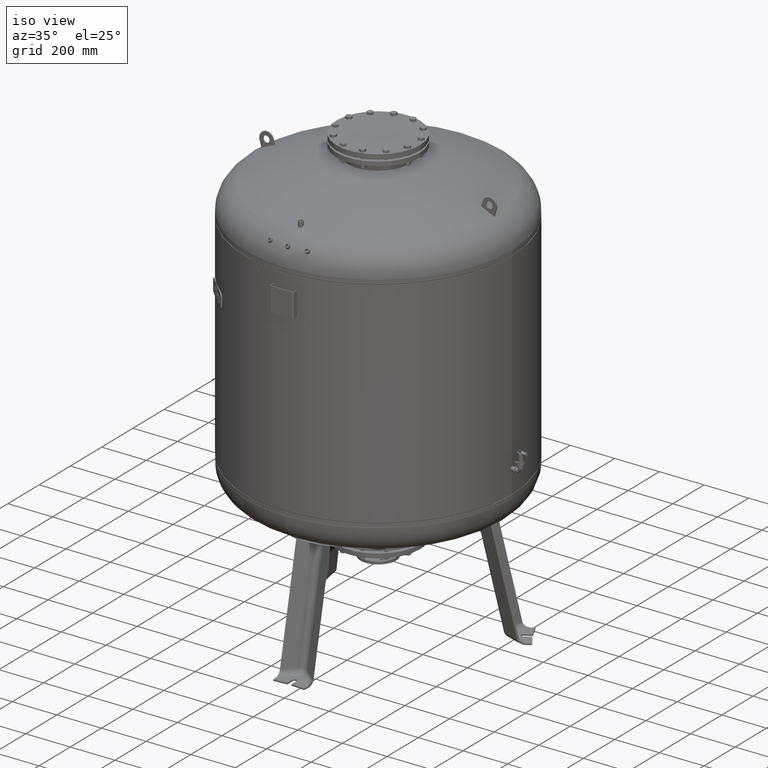
[diagram: clean part render]
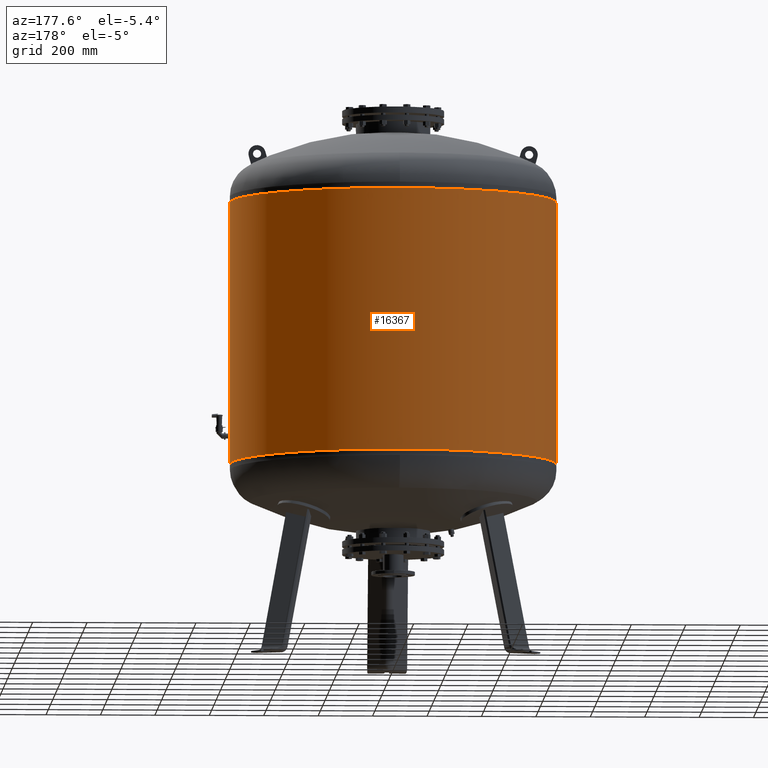
[diagram: tour spotlight — one face highlighted and labeled with its STEP entity id]
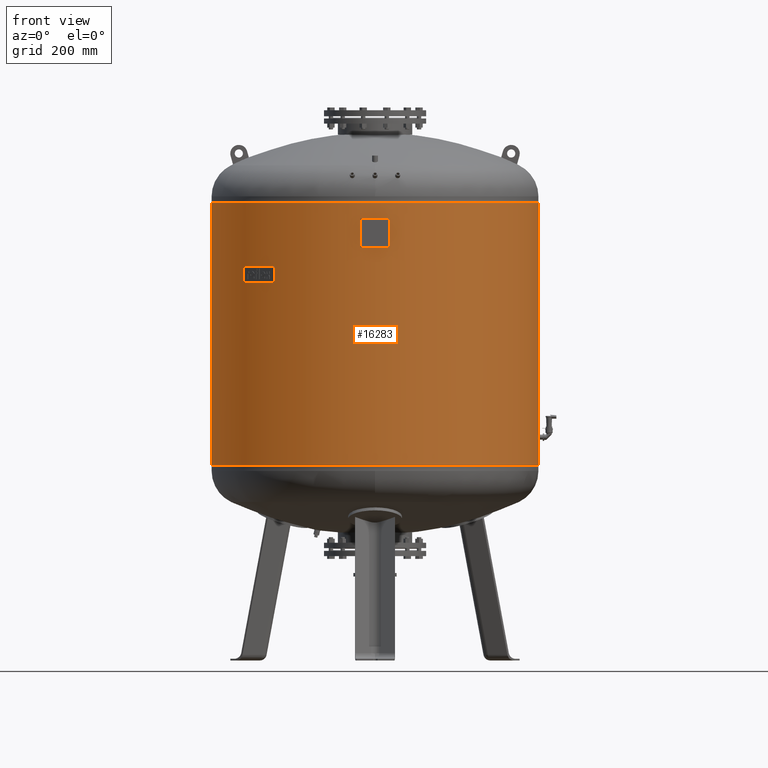
[diagram: tour spotlight — one face highlighted and labeled with its STEP entity id]
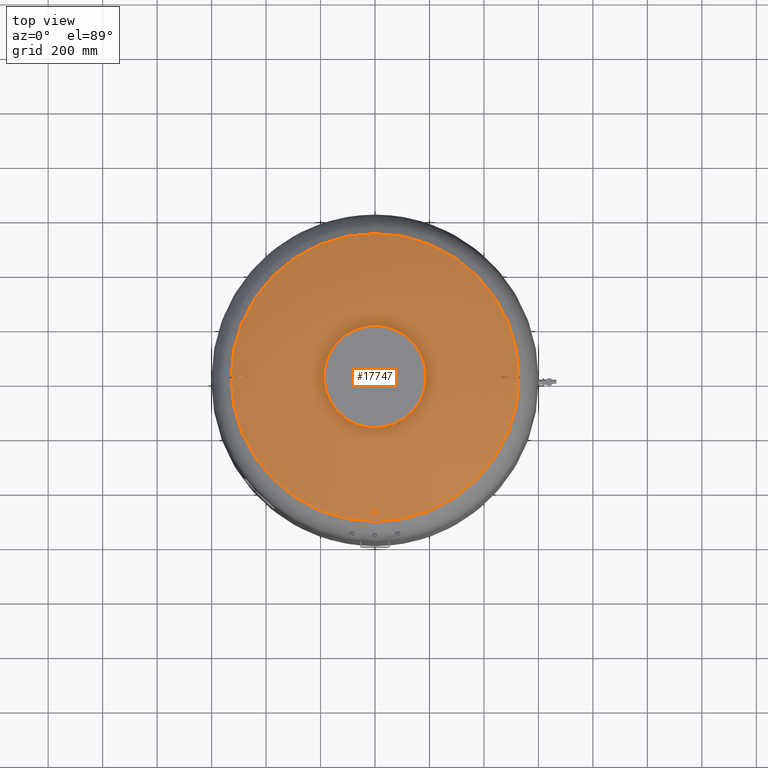
[diagram: tour spotlight — one face highlighted and labeled with its STEP entity id]
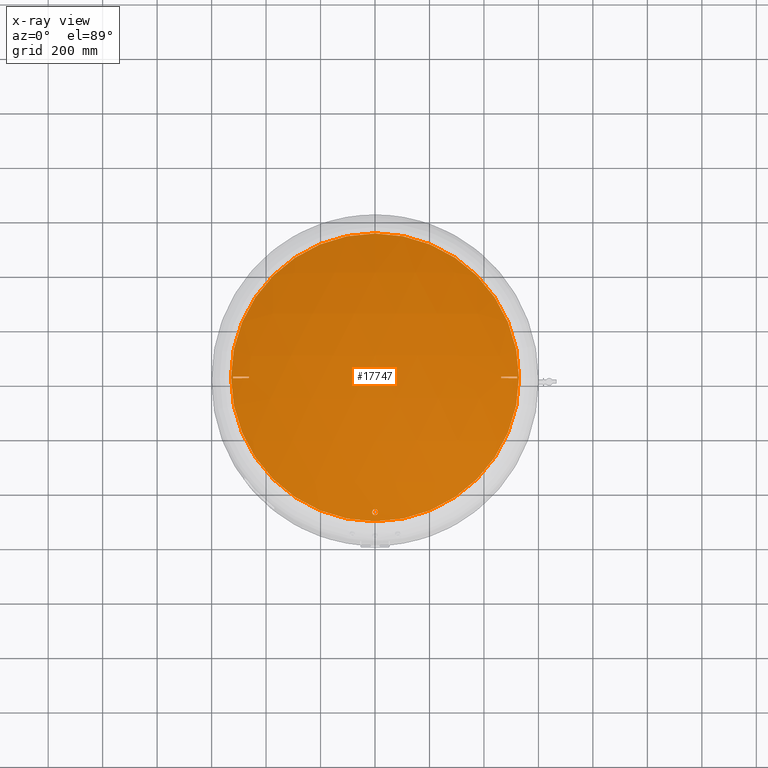
[diagram: x-ray of the same camera — body ghosted, this tour face saturated]
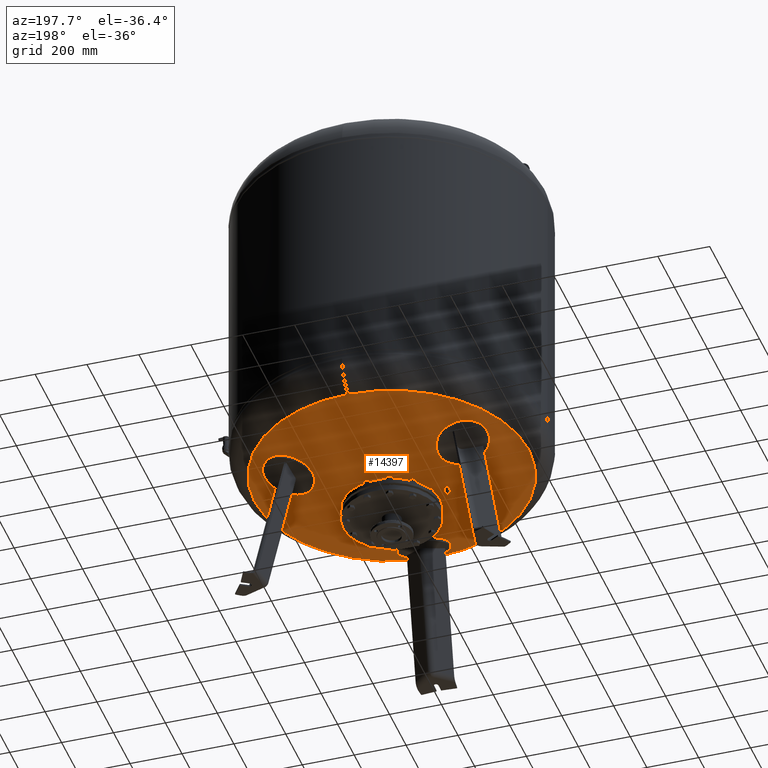
[diagram: tour spotlight — one face highlighted and labeled with its STEP entity id]
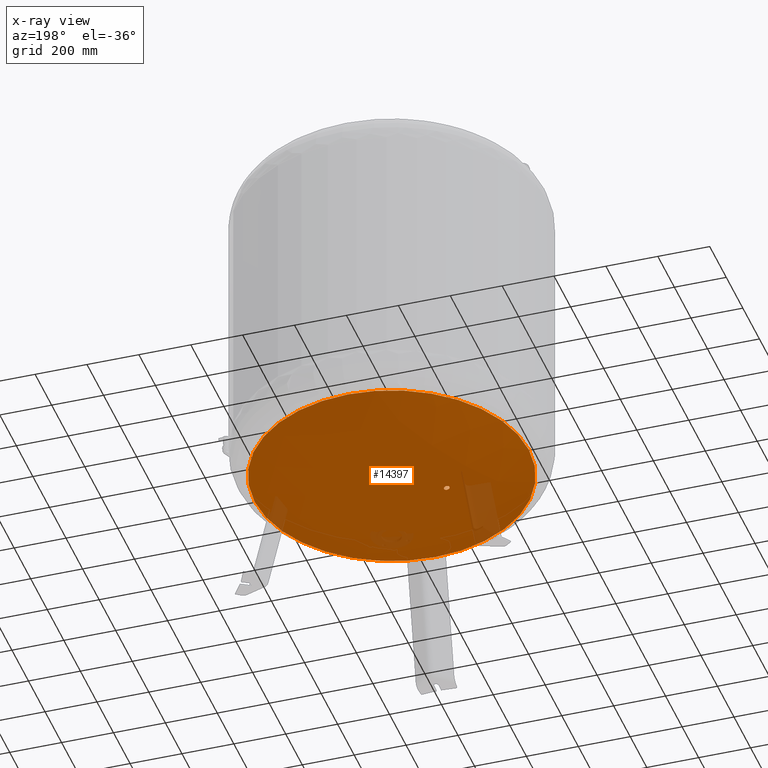
[diagram: x-ray of the same camera — body ghosted, this tour face saturated]
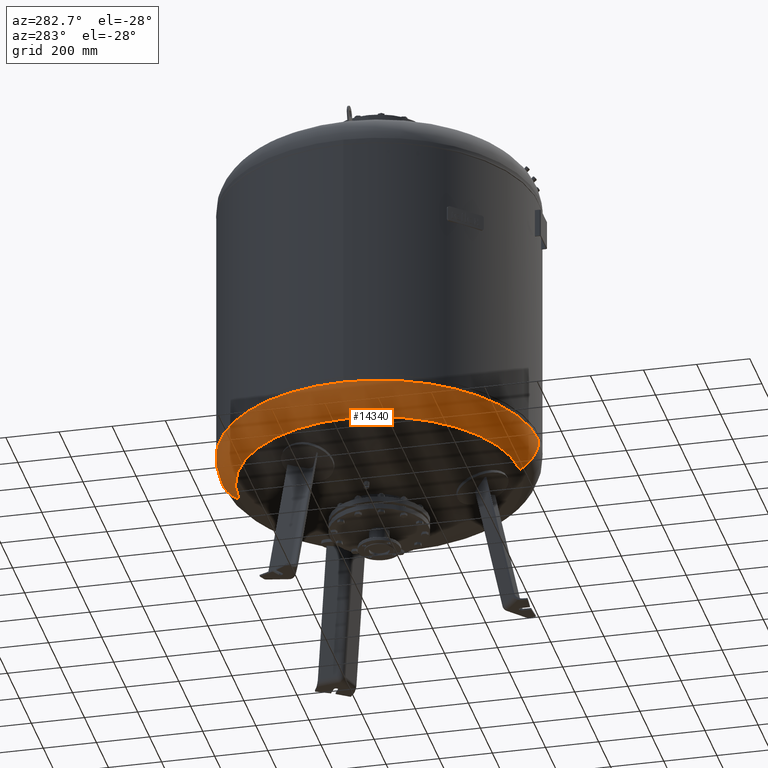
[diagram: tour spotlight — one face highlighted and labeled with its STEP entity id]
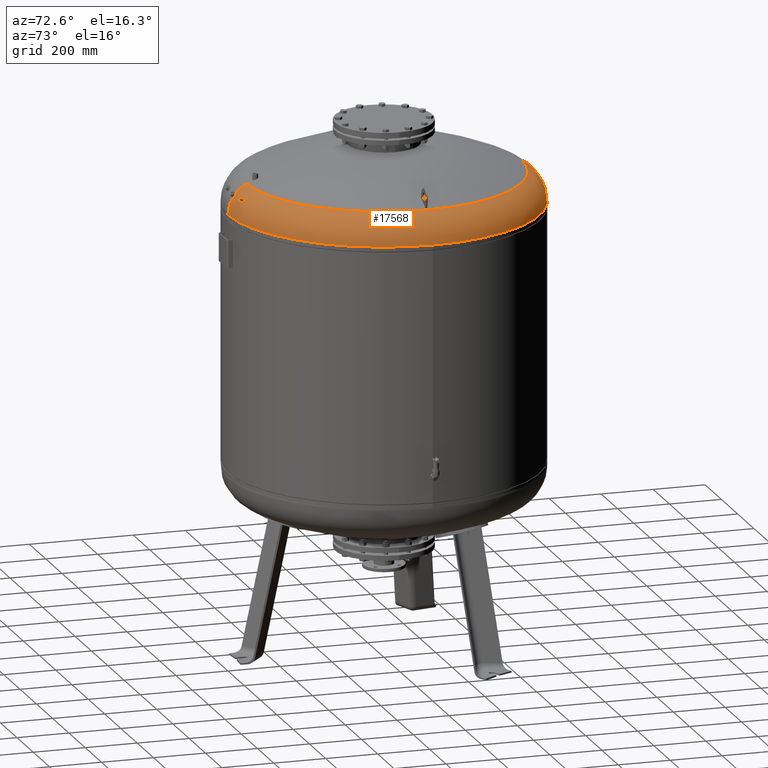
[diagram: tour spotlight — one face highlighted and labeled with its STEP entity id]
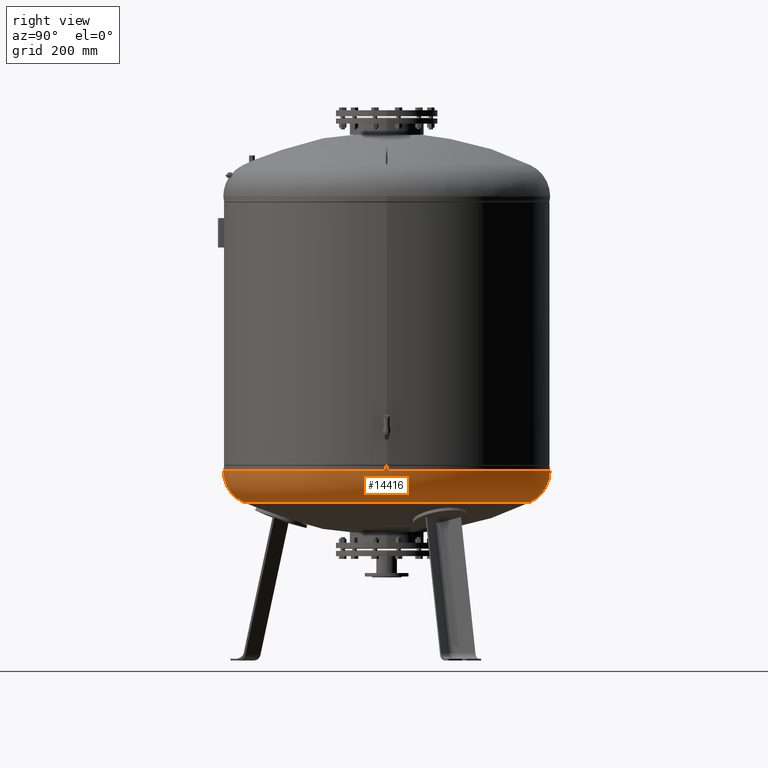
[diagram: tour spotlight — one face highlighted and labeled with its STEP entity id]
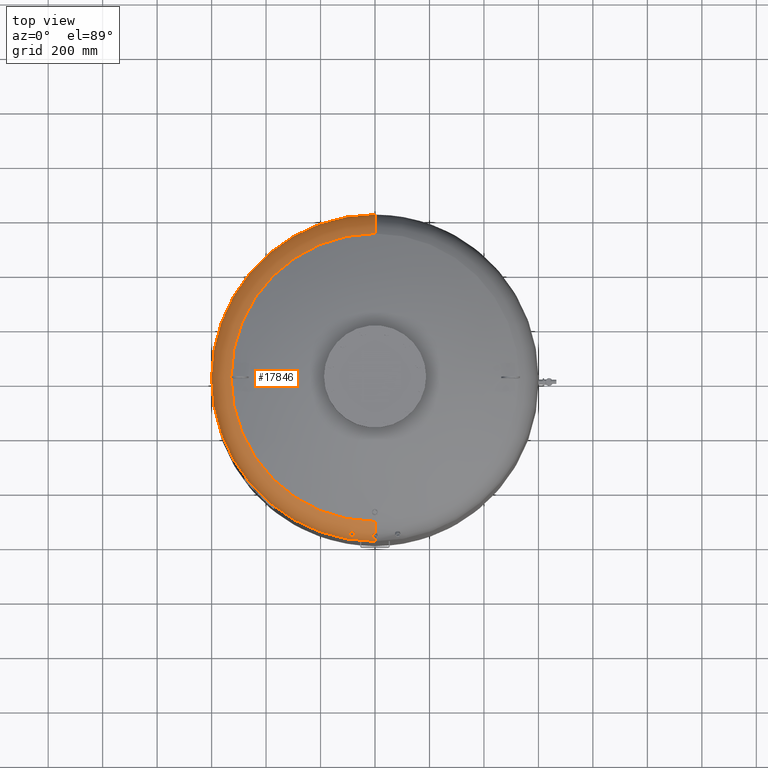
[diagram: tour spotlight — one face highlighted and labeled with its STEP entity id]
A machine part: a face-by-face anatomy tour. The part has 940 B-rep faces; the first image is the clean iso view, then the 8 largest visible faces are spotlighted one at a time (largest first), each with its STEP entity span.

Face 1 — auxiliary view, entity #16367. In plain terms, the highlighted cylindrical surface (partial cylindrical patch) has radius 600 mm, axis along (0, 0, 1).
Definition (entity closure, byte-faithful):
#16247=CARTESIAN_POINT('',(600.000000000000570,0.0,1681.999999999999800));
#16248=VERTEX_POINT('',#16247);
#16249=CARTESIAN_POINT('',(600.000000000000110,0.0,717.999999999999770));
#16250=VERTEX_POINT('',#16249);
#16251=CARTESIAN_POINT('',(600.000000000000570,0.0,1681.999999999999800));
#16252=DIRECTION('',(0.0,0.0,-1.0));
#16253=VECTOR('',#16252,964.0);
#16254=LINE('',#16251,#16253);
#16255=EDGE_CURVE('',#16248,#16250,#16254,.T.);
#16257=CARTESIAN_POINT('',(-600.000000000000450,-7.347638E-014,1681.999999999999800));
#16258=VERTEX_POINT('',#16257);
#16266=CARTESIAN_POINT('',(-600.000000000000110,-7.347638E-014,717.999999999999770));
#16267=VERTEX_POINT('',#16266);
#16268=CARTESIAN_POINT('',(-600.000000000000450,-7.347638E-014,1681.999999999999800));
#16269=DIRECTION('',(0.0,0.0,-1.0));
#16270=VECTOR('',#16269,964.0);
#16271=LINE('',#16268,#16270);
#16272=EDGE_CURVE('',#16258,#16267,#16271,.T.);
#16340=CARTESIAN_POINT('',(-1.658784E-014,0.0,717.999999999999770));
#16341=DIRECTION('',(0.0,0.0,1.0));
#16342=DIRECTION('',(1.0,0.0,0.0));
#16343=AXIS2_PLACEMENT_3D('',#16340,#16341,#16342);
#16344=CIRCLE('',#16343,600.000000000000110);
#16345=EDGE_CURVE('',#16250,#16267,#16344,.T.);
#16350=CARTESIAN_POINT('',(8.293918E-015,0.0,1433.500000000000000));
#16351=DIRECTION('',(3.337593E-017,0.0,1.0));
#16352=DIRECTION('',(1.0,0.0,0.0));
#16353=AXIS2_PLACEMENT_3D('',#16350,#16351,#16352);
#16354=CYLINDRICAL_SURFACE('',#16353,600.000000000000450);
#16355=ORIENTED_EDGE('',*,*,#16255,.T.);
#16356=ORIENTED_EDGE('',*,*,#16345,.T.);
#16357=ORIENTED_EDGE('',*,*,#16272,.F.);
#16358=CARTESIAN_POINT('',(1.658784E-014,0.0,1681.999999999999800));
#16359=DIRECTION('',(0.0,0.0,1.0));
#16360=DIRECTION('',(1.0,0.0,0.0));
#16361=AXIS2_PLACEMENT_3D('',#16358,#16359,#16360);
#16362=CIRCLE('',#16361,600.000000000000570);
#16363=EDGE_CURVE('',#16248,#16258,#16362,.T.);
#16364=ORIENTED_EDGE('',*,*,#16363,.F.);
#16365=EDGE_LOOP('',(#16355,#16356,#16357,#16364));
#16366=FACE_OUTER_BOUND('',#16365,.T.);
#16367=ADVANCED_FACE('',(#16366),#16354,.T.);

Face 2 — front view, entity #16283. In plain terms, the highlighted cylindrical surface (partial cylindrical patch) has radius 600 mm, axis along (0, 0, 1).
Definition (entity closure, byte-faithful):
#16242=CARTESIAN_POINT('',(8.293918E-015,0.0,1433.500000000000000));
#16243=DIRECTION('',(3.337593E-017,0.0,1.0));
#16244=DIRECTION('',(1.0,0.0,0.0));
#16245=AXIS2_PLACEMENT_3D('',#16242,#16243,#16244);
#16246=CYLINDRICAL_SURFACE('',#16245,600.000000000000450);
#16247=CARTESIAN_POINT('',(600.000000000000570,0.0,1681.999999999999800));
#16248=VERTEX_POINT('',#16247);
#16249=CARTESIAN_POINT('',(600.000000000000110,0.0,717.999999999999770));
#16250=VERTEX_POINT('',#16249);
#16251=CARTESIAN_POINT('',(600.000000000000570,0.0,1681.999999999999800));
#16252=DIRECTION('',(0.0,0.0,-1.0));
#16253=VECTOR('',#16252,964.0);
#16254=LINE('',#16251,#16253);
#16255=EDGE_CURVE('',#16248,#16250,#16254,.T.);
#16256=ORIENTED_EDGE('',*,*,#16255,.F.);
#16257=CARTESIAN_POINT('',(-600.000000000000450,-7.347638E-014,1681.999999999999800));
#16258=VERTEX_POINT('',#16257);
#16259=CARTESIAN_POINT('',(1.658784E-014,0.0,1681.999999999999800));
#16260=DIRECTION('',(0.0,0.0,1.0));
#16261=DIRECTION('',(1.0,0.0,0.0));
#16262=AXIS2_PLACEMENT_3D('',#16259,#16260,#16261);
#16263=CIRCLE('',#16262,600.000000000000570);
#16264=EDGE_CURVE('',#16258,#16248,#16263,.T.);
#16265=ORIENTED_EDGE('',*,*,#16264,.F.);
#16266=CARTESIAN_POINT('',(-600.000000000000110,-7.347638E-014,717.999999999999770));
#16267=VERTEX_POINT('',#16266);
#16268=CARTESIAN_POINT('',(-600.000000000000450,-7.347638E-014,1681.999999999999800));
#16269=DIRECTION('',(0.0,0.0,-1.0));
#16270=VECTOR('',#16269,964.0);
#16271=LINE('',#16268,#16270);
#16272=EDGE_CURVE('',#16258,#16267,#16271,.T.);
#16273=ORIENTED_EDGE('',*,*,#16272,.T.);
#16274=CARTESIAN_POINT('',(-1.658784E-014,0.0,717.999999999999770));
#16275=DIRECTION('',(0.0,0.0,1.0));
#16276=DIRECTION('',(1.0,0.0,0.0));
#16277=AXIS2_PLACEMENT_3D('',#16274,#16275,#16276);
#16278=CIRCLE('',#16277,600.000000000000110);
#16279=EDGE_CURVE('',#16267,#16250,#16278,.T.);
#16280=ORIENTED_EDGE('',*,*,#16279,.T.);
#16281=EDGE_LOOP('',(#16256,#16265,#16273,#16280));
#16282=FACE_OUTER_BOUND('',#16281,.T.);
#16283=ADVANCED_FACE('',(#16282),#16246,.T.);

Face 3 — top view, entity #17747. An x-ray twin of the same camera follows (body ghosted, this face saturated) — the face is partly hidden behind the body. In plain terms, the highlighted spherical surface has radius 1207 mm.
Definition (entity closure, byte-faithful):
#16529=CARTESIAN_POINT('',(-3.908790E-014,-505.650000000000260,1828.977681113990700));
#16530=VERTEX_POINT('',#16529);
#16546=CARTESIAN_POINT('',(-3.643333E-014,-484.350000000000310,1838.556003782712200));
#16547=VERTEX_POINT('',#16546);
#16554=CARTESIAN_POINT('',(-3.643333E-014,-484.350000000000310,1838.556003782712200));
#16555=CARTESIAN_POINT('',(-0.665611636080587,-484.350000000000310,1838.556003782712200));
#16556=CARTESIAN_POINT('',(-1.351712007087174,-484.413449330400450,1838.527596291778100));
#16557=CARTESIAN_POINT('',(-2.711455124781883,-484.677684778344770,1838.409278534069900));
#16558=CARTESIAN_POINT('',(-3.385112822109979,-484.878406691486020,1838.319396709681300));
#16559=CARTESIAN_POINT('',(-4.671983453209512,-485.404260841615380,1838.083876063063600));
#16560=CARTESIAN_POINT('',(-5.286383442477947,-485.729841940405830,1837.938035283821800));
#16561=CARTESIAN_POINT('',(-6.418662963042159,-486.474599944024990,1837.604341560041300));
#16562=CARTESIAN_POINT('',(-6.936540506419686,-486.893778895747520,1837.416486438550200));
#16563=CARTESIAN_POINT('',(-7.900192687897327,-487.823356474835690,1836.999774688893900));
#16564=CARTESIAN_POINT('',(-8.369020497877676,-488.373824638455970,1836.752944631033400));
#16565=CARTESIAN_POINT('',(-9.188808647865463,-489.567459190703860,1836.217505560420200));
#16566=CARTESIAN_POINT('',(-9.539857037879660,-490.210574780593670,1835.928918118605900));
#16567=CARTESIAN_POINT('',(-10.100625147679995,-491.546764270494920,1835.329066489736500));
#16568=CARTESIAN_POINT('',(-10.310736765037014,-492.240729558734700,1835.017401333808500));
#16569=CARTESIAN_POINT('',(-10.585453694089770,-493.631410911690980,1834.392563213996500));
#16570=CARTESIAN_POINT('',(-10.650000000000041,-494.328136578031940,1834.079385679025300));
#16571=CARTESIAN_POINT('',(-10.650000000000041,-495.672249771666320,1833.474961828124200));
#16572=CARTESIAN_POINT('',(-10.585380396556669,-496.369268012084660,1833.161397323186300));
#16573=CARTESIAN_POINT('',(-10.310462392525936,-497.760351114899380,1832.535323620084000));
#16574=CARTESIAN_POINT('',(-10.100224561864295,-498.454426017125230,1832.222810133959700));
#16575=CARTESIAN_POINT('',(-9.539219073899464,-499.790709135052230,1831.620892770933300));
#16576=CARTESIAN_POINT('',(-9.188061671035115,-500.433806541516050,1831.331089151720100));
#16577=CARTESIAN_POINT('',(-8.368086172563105,-501.627357286810650,1830.793043409988500));
#16578=CARTESIAN_POINT('',(-7.899179737395413,-502.177760642695720,1830.544825043460200));
#16579=CARTESIAN_POINT('',(-6.935591451669570,-503.107009891746540,1830.125643340669500));
#16580=CARTESIAN_POINT('',(-6.417878505985910,-503.525973237725740,1829.936594437422400));
#16581=CARTESIAN_POINT('',(-5.285911664195274,-504.270411104392510,1829.600610399233600));
#16582=CARTESIAN_POINT('',(-4.671659030031402,-504.595887700676880,1829.453675611560100));
#16583=CARTESIAN_POINT('',(-3.385018268838375,-505.121615967432380,1829.216307020834600));
#16584=CARTESIAN_POINT('',(-2.711440963249321,-505.322316471515020,1829.125671514436800));
#16585=CARTESIAN_POINT('',(-1.351770687093105,-505.586540768529060,1829.006343822394000));
#16586=CARTESIAN_POINT('',(-0.665662584297589,-505.650000000000260,1828.977681113990700));
#16587=CARTESIAN_POINT('',(-3.908790E-014,-505.650000000000260,1828.977681113990700));
#16588=B_SPLINE_CURVE_WITH_KNOTS('',3,(#16554,#16555,#16556,#16557,#16558,#16559,#16560,#16561,#16562,#16563,#16564,#16565,#16566,#16567,#16568,#16569,#16570,#16571,#16572,#16573,#16574,#16575,#16576,#16577,#16578,#16579,#16580,#16581,#16582,#16583,#16584,#16585,#16586,#16587),.UNSPECIFIED.,.F.,.U.,(4,2,2,2,2,2,2,2,2,2,2,2,2,2,2,2,4),(33.660410364601788,35.657245272843440,37.654080181085092,39.650915089326745,41.647749997568390,43.857754539841181,46.067759082113966,48.277763624386751,50.487768166659535,52.699043554402891,54.910318942146247,57.121594329889604,59.332869717632960,61.329857470525610,63.326845223418267,65.323832976310925,67.320820729203575),.UNSPECIFIED.);
#16589=EDGE_CURVE('',#16547,#16530,#16588,.T.);
#17478=CARTESIAN_POINT('',(1.036830E-013,528.621296296296240,1818.084570483805000));
#17479=VERTEX_POINT('',#17478);
#17487=CARTESIAN_POINT('',(528.621296296296240,-2.239550E-014,1818.084570483805000));
#17488=VERTEX_POINT('',#17487);
#17489=CARTESIAN_POINT('',(3.410787E-015,-2.239550E-014,1818.084570483805000));
#17490=DIRECTION('',(0.0,0.0,-1.0));
#17491=DIRECTION('',(1.0,0.0,0.0));
#17492=AXIS2_PLACEMENT_3D('',#17489,#17490,#17491);
#17493=CIRCLE('',#17492,528.621296296296240);
#17494=EDGE_CURVE('',#17479,#17488,#17493,.T.);
#17496=CARTESIAN_POINT('',(3.894773E-014,-528.621296296296240,1818.084570483805000));
#17497=VERTEX_POINT('',#17496);
#17498=CARTESIAN_POINT('',(3.410787E-015,-2.239550E-014,1818.084570483805000));
#17499=DIRECTION('',(0.0,0.0,-1.0));
#17500=DIRECTION('',(1.0,0.0,0.0));
#17501=AXIS2_PLACEMENT_3D('',#17498,#17499,#17500);
#17502=CIRCLE('',#17501,528.621296296296240);
#17503=EDGE_CURVE('',#17488,#17497,#17502,.T.);
#17615=CARTESIAN_POINT('',(1.237204E-013,-2.217223E-013,733.0));
#17616=DIRECTION('',(0.0,-1.0,0.0));
#17617=DIRECTION('',(-1.0,0.0,0.0));
#17618=AXIS2_PLACEMENT_3D('',#17615,#17616,#17617);
#17619=SPHERICAL_SURFACE('',#17618,1207.000000000000200);
#17620=ORIENTED_EDGE('',*,*,#17503,.F.);
#17621=ORIENTED_EDGE('',*,*,#17494,.F.);
#17622=CARTESIAN_POINT('',(3.410787E-015,-2.239550E-014,1818.084570483805000));
#17623=DIRECTION('',(0.0,0.0,-1.0));
#17624=DIRECTION('',(1.0,0.0,0.0));
#17625=AXIS2_PLACEMENT_3D('',#17622,#17623,#17624);
#17626=CIRCLE('',#17625,528.621296296296240);
#17627=EDGE_CURVE('',#17497,#17479,#17626,.T.);
#17628=ORIENTED_EDGE('',*,*,#17627,.F.);
#17629=EDGE_LOOP('',(#17620,#17621,#17628));
#17630=FACE_OUTER_BOUND('',#17629,.T.);
#17631=CARTESIAN_POINT('',(463.451600218966230,-3.000000000000292,1847.474142479079300));
#17632=VERTEX_POINT('',#17631);
#17633=CARTESIAN_POINT('',(463.451600218966350,2.999999999999727,1847.474142479079800));
#17634=VERTEX_POINT('',#17633);
#17635=CARTESIAN_POINT('',(143.673995061822890,7.801844E-013,693.196972395375950));
#17636=DIRECTION('',(-0.963701753162816,-6.720348E-015,0.266981143436978));
#17637=DIRECTION('',(-0.266981143436977,0.0,-0.963701753162815));
#17638=AXIS2_PLACEMENT_3D('',#17635,#17636,#17637);
#17639=CIRCLE('',#17638,1197.757280143385700);
#17640=EDGE_CURVE('',#17632,#17634,#17639,.T.);
#17641=ORIENTED_EDGE('',*,*,#17640,.T.);
#17642=CARTESIAN_POINT('',(521.618748390259730,3.000000000000095,1821.464000933324300));
#17643=VERTEX_POINT('',#17642);
#17644=CARTESIAN_POINT('',(1.015543E-013,2.999999999995042,733.0));
#17645=DIRECTION('',(0.0,1.0,0.0));
#17646=DIRECTION('',(0.0,0.0,-1.0));
#17647=AXIS2_PLACEMENT_3D('',#17644,#17645,#17646);
#17648=CIRCLE('',#17647,1206.996271742378000);
#17649=EDGE_CURVE('',#17634,#17643,#17648,.T.);
#17650=ORIENTED_EDGE('',*,*,#17649,.T.);
#17651=CARTESIAN_POINT('',(521.618748390259610,-2.999999999999862,1821.464000933324300));
#17652=VERTEX_POINT('',#17651);
#17653=CARTESIAN_POINT('',(204.387205511080450,1.203566E-012,676.377160358846370));
#17654=DIRECTION('',(0.963701753162815,6.720348E-015,-0.266981143436977));
#17655=DIRECTION('',(0.266981143436977,0.0,0.963701753162815));
#17656=AXIS2_PLACEMENT_3D('',#17653,#17654,#17655);
#17657=CIRCLE('',#17656,1188.220823018324600);
#17658=EDGE_CURVE('',#17643,#17652,#17657,.T.);
#17659=ORIENTED_EDGE('',*,*,#17658,.T.);
#17660=CARTESIAN_POINT('',(1.458865E-013,-3.000000000004973,733.0));
#17661=DIRECTION('',(0.0,-1.0,0.0));
#17662=DIRECTION('',(0.0,0.0,1.0));
#17663=AXIS2_PLACEMENT_3D('',#17660,#17661,#17662);
#17664=CIRCLE('',#17663,1206.996271742378000);
#17665=EDGE_CURVE('',#17652,#17632,#17664,.T.);
#17666=ORIENTED_EDGE('',*,*,#17665,.T.);
#17667=EDGE_LOOP('',(#17641,#17650,#17659,#17666));
#17668=FACE_BOUND('',#17667,.T.);
#17669=CARTESIAN_POINT('',(-463.451600218966290,2.999999999999727,1847.474142479079500));
#17670=VERTEX_POINT('',#17669);
#17671=CARTESIAN_POINT('',(-463.451600218966230,-3.000000000000292,1847.474142479079300));
#17672=VERTEX_POINT('',#17671);
#17673=CARTESIAN_POINT('',(-143.673995061822890,7.801844E-013,693.196972395375950));
#17674=DIRECTION('',(0.963701753162816,-6.720348E-015,0.266981143436978));
#17675=DIRECTION('',(-0.266981143436977,0.0,0.963701753162815));
#17676=AXIS2_PLACEMENT_3D('',#17673,#17674,#17675);
#17677=CIRCLE('',#17676,1197.757280143385700);
#17678=EDGE_CURVE('',#17670,#17672,#17677,.T.);
#17679=ORIENTED_EDGE('',*,*,#17678,.T.);
#17680=CARTESIAN_POINT('',(-521.618748390259610,-2.999999999999862,1821.464000933324300));
#17681=VERTEX_POINT('',#17680);
#17682=CARTESIAN_POINT('',(1.015543E-013,-3.000000000004973,733.0));
#17683=DIRECTION('',(0.0,-1.0,0.0));
#17684=DIRECTION('',(0.0,0.0,1.0));
#17685=AXIS2_PLACEMENT_3D('',#17682,#17683,#17684);
#17686=CIRCLE('',#17685,1206.996271742378000);
#17687=EDGE_CURVE('',#17672,#17681,#17686,.T.);
#17688=ORIENTED_EDGE('',*,*,#17687,.T.);
#17689=CARTESIAN_POINT('',(-521.618748390259730,3.000000000000095,1821.464000933324100));
#17690=VERTEX_POINT('',#17689);
#17691=CARTESIAN_POINT('',(-204.387205511080400,1.203566E-012,676.377160358846370));
#17692=DIRECTION('',(-0.963701753162815,6.720348E-015,-0.266981143436977));
#17693=DIRECTION('',(0.266981143436977,0.0,-0.963701753162815));
#17694=AXIS2_PLACEMENT_3D('',#17691,#17692,#17693);
#17695=CIRCLE('',#17694,1188.220823018324600);
#17696=EDGE_CURVE('',#17681,#17690,#17695,.T.);
#17697=ORIENTED_EDGE('',*,*,#17696,.T.);
#17698=CARTESIAN_POINT('',(1.458865E-013,2.999999999995042,733.0));
#17699=DIRECTION('',(0.0,1.0,0.0));
#17700=DIRECTION('',(0.0,0.0,-1.0));
#17701=AXIS2_PLACEMENT_3D('',#17698,#17699,#17700);
#17702=CIRCLE('',#17701,1206.996271742378000);
#17703=EDGE_CURVE('',#17690,#17670,#17702,.T.);
#17704=ORIENTED_EDGE('',*,*,#17703,.T.);
#17705=EDGE_LOOP('',(#17679,#17688,#17697,#17704));
#17706=FACE_BOUND('',#17705,.T.);
#17707=CARTESIAN_POINT('',(-3.908790E-014,-505.650000000000260,1828.977681113990700));
#17708=CARTESIAN_POINT('',(0.665662584297512,-505.650000000000260,1828.977681113990700));
#17709=CARTESIAN_POINT('',(1.351770687093029,-505.586540768529060,1829.006343822394000));
#17710=CARTESIAN_POINT('',(2.711440963249246,-505.322316471515020,1829.125671514436800));
#17711=CARTESIAN_POINT('',(3.385018268838298,-505.121615967432380,1829.216307020834600));
#17712=CARTESIAN_POINT('',(4.671659030031323,-504.595887700676880,1829.453675611560100));
#17713=CARTESIAN_POINT('',(5.285911664195194,-504.270411104392510,1829.600610399233600));
#17714=CARTESIAN_POINT('',(6.417878505985831,-503.525973237725740,1829.936594437422400));
#17715=CARTESIAN_POINT('',(6.935591451669492,-503.107009891746540,1830.125643340669500));
#17716=CARTESIAN_POINT('',(7.899179737395336,-502.177760642695720,1830.544825043460200));
#17717=CARTESIAN_POINT('',(8.368086172563030,-501.627357286810650,1830.793043409988500));
#17718=CARTESIAN_POINT('',(9.188061671035039,-500.433806541516050,1831.331089151720100));
#17719=CARTESIAN_POINT('',(9.539219073899387,-499.790709135052230,1831.620892770933300));
#17720=CARTESIAN_POINT('',(10.100224561864218,-498.454426017125230,1832.222810133959700));
#17721=CARTESIAN_POINT('',(10.310462392525860,-497.760351114899380,1832.535323620084000));
#17722=CARTESIAN_POINT('',(10.585380396556593,-496.369268012084660,1833.161397323186300));
#17723=CARTESIAN_POINT('',(10.649999999999967,-495.672249771666320,1833.474961828124200));
#17724=CARTESIAN_POINT('',(10.649999999999967,-494.328136578031940,1834.079385679025300));
#17725=CARTESIAN_POINT('',(10.585453694089695,-493.631410911691030,1834.392563213996500));
#17726=CARTESIAN_POINT('',(10.310736765036935,-492.240729558734700,1835.017401333808500));
#17727=CARTESIAN_POINT('',(10.100625147679885,-491.546764270494800,1835.329066489736500));
#17728=CARTESIAN_POINT('',(9.539857037879532,-490.210574780593560,1835.928918118605900));
#17729=CARTESIAN_POINT('',(9.188808647865377,-489.567459190703860,1836.217505560420200));
#17730=CARTESIAN_POINT('',(8.369020497877601,-488.373824638455970,1836.752944631033400));
#17731=CARTESIAN_POINT('',(7.900192687897256,-487.823356474835690,1836.999774688893900));
#17732=CARTESIAN_POINT('',(6.936540506419615,-486.893778895747520,1837.416486438550200));
#17733=CARTESIAN_POINT('',(6.418662963042084,-486.474599944024990,1837.604341560041300));
#17734=CARTESIAN_POINT('',(5.286383442477869,-485.729841940405830,1837.938035283821800));
#17735=CARTESIAN_POINT('',(4.671983453209435,-485.404260841615380,1838.083876063063600));
#17736=CARTESIAN_POINT('',(3.385112822109905,-484.878406691486020,1838.319396709681300));
#17737=CARTESIAN_POINT('',(2.711455124781810,-484.677684778344770,1838.409278534069900));
#17738=CARTESIAN_POINT('',(1.351712007087104,-484.413449330400450,1838.527596291778100));
#17739=CARTESIAN_POINT('',(0.665611636080514,-484.350000000000310,1838.556003782712200));
#17740=CARTESIAN_POINT('',(-3.643333E-014,-484.350000000000310,1838.556003782712200));
#17741=B_SPLINE_CURVE_WITH_KNOTS('',3,(#17707,#17708,#17709,#17710,#17711,#17712,#17713,#17714,#17715,#17716,#17717,#17718,#17719,#17720,#17721,#17722,#17723,#17724,#17725,#17726,#17727,#17728,#17729,#17730,#17731,#17732,#17733,#17734,#17735,#17736,#17737,#17738,#17739,#17740),.UNSPECIFIED.,.F.,.U.,(4,2,2,2,2,2,2,2,2,2,2,2,2,2,2,2,4),(0.0,1.996987752892653,3.993975505785305,5.990963258677958,7.987951011570610,10.199226399313968,12.410501787057324,14.621777174800682,16.833052562544040,19.043057104816825,21.253061647089613,23.463066189362401,25.673070731635185,27.669905639876838,29.666740548118486,31.663575456360135,33.660410364601788),.UNSPECIFIED.);
#17742=EDGE_CURVE('',#16530,#16547,#17741,.T.);
#17743=ORIENTED_EDGE('',*,*,#17742,.F.);
#17744=ORIENTED_EDGE('',*,*,#16589,.F.);
#17745=EDGE_LOOP('',(#17743,#17744));
#17746=FACE_BOUND('',#17745,.T.);
#17747=ADVANCED_FACE('',(#17630,#17668,#17706,#17746),#17619,.T.);

Face 4 — auxiliary view, entity #14397. An x-ray twin of the same camera follows (body ghosted, this face saturated) — the face is partly hidden behind the body. In plain terms, the highlighted spherical surface has radius 1207 mm.
Definition (entity closure, byte-faithful):
#13783=CARTESIAN_POINT('',(-211.937198401616570,10.650000000000025,478.800437033544990));
#13784=VERTEX_POINT('',#13783);
#13800=CARTESIAN_POINT('',(-211.937198401616510,-10.649999999999979,478.800437033544990));
#13801=VERTEX_POINT('',#13800);
#13808=CARTESIAN_POINT('',(-211.937198401616510,-10.649999999999979,478.800437033544990));
#13809=CARTESIAN_POINT('',(-212.596029678045710,-10.649999999999979,478.917951682849490));
#13810=CARTESIAN_POINT('',(-213.277383817210730,-10.586015634619065,479.039484704573110));
#13811=CARTESIAN_POINT('',(-214.632812812199460,-10.316454420028741,479.281254459445170));
#13812=CARTESIAN_POINT('',(-215.306898768327130,-10.110935162849934,479.401493169858780));
#13813=CARTESIAN_POINT('',(-216.599832825596370,-9.567334072840172,479.632119505102420));
#13814=CARTESIAN_POINT('',(-217.219708994972820,-9.228819727733196,479.742690503765460));
#13815=CARTESIAN_POINT('',(-218.366098977492160,-8.446425587689298,479.947180301647620));
#13816=CARTESIAN_POINT('',(-218.892580278450000,-8.002496637540414,480.041093291367360));
#13817=CARTESIAN_POINT('',(-219.824105465379660,-7.056765513726695,480.207258310295630));
#13818=CARTESIAN_POINT('',(-220.261052221517130,-6.522745299144131,480.285201165612080));
#13819=CARTESIAN_POINT('',(-221.031256683779190,-5.359849321490238,480.422591362641240));
#13820=CARTESIAN_POINT('',(-221.364561974932540,-4.731006077020704,480.482047181678750));
#13821=CARTESIAN_POINT('',(-221.899853661642790,-3.419269367759577,480.577534088734980));
#13822=CARTESIAN_POINT('',(-222.102266731446090,-2.735329690712802,480.613641280984720));
#13823=CARTESIAN_POINT('',(-222.367770748517780,-1.359994895139886,480.661002909983100));
#13824=CARTESIAN_POINT('',(-222.430804902588420,-0.668588464558689,480.672247213955190));
#13825=CARTESIAN_POINT('',(-222.430804902588420,0.668588464558728,480.672247213955190));
#13826=CARTESIAN_POINT('',(-222.367770748517780,1.359994895139923,480.661002909983100));
#13827=CARTESIAN_POINT('',(-222.102266731446090,2.735329690712840,480.613641280984720));
#13828=CARTESIAN_POINT('',(-221.899853661642790,3.419269367759616,480.577534088734980));
#13829=CARTESIAN_POINT('',(-221.364561974932540,4.731006077020746,480.482047181678750));
#13830=CARTESIAN_POINT('',(-221.031256683779190,5.359849321490282,480.422591362641240));
#13831=CARTESIAN_POINT('',(-220.261052221517160,6.522745299144174,480.285201165612080));
#13832=CARTESIAN_POINT('',(-219.824105465379660,7.056765513726734,480.207258310295630));
#13833=CARTESIAN_POINT('',(-218.892580278450000,8.002496637540453,480.041093291367360));
#13834=CARTESIAN_POINT('',(-218.366098977492160,8.446425587689342,479.947180301647620));
#13835=CARTESIAN_POINT('',(-217.219708994972820,9.228819727733242,479.742690503765460));
#13836=CARTESIAN_POINT('',(-216.599832825596370,9.567334072840220,479.632119505102420));
#13837=CARTESIAN_POINT('',(-215.306898768327130,10.110935162849984,479.401493169858780));
#13838=CARTESIAN_POINT('',(-214.632812812199460,10.316454420028787,479.281254459445170));
#13839=CARTESIAN_POINT('',(-213.277383817210730,10.586015634619111,479.039484704573110));
#13840=CARTESIAN_POINT('',(-212.596029678045770,10.650000000000025,478.917951682849490));
#13841=CARTESIAN_POINT('',(-211.937198401616570,10.650000000000025,478.800437033544990));
#13842=B_SPLINE_CURVE_WITH_KNOTS('',3,(#13808,#13809,#13810,#13811,#13812,#13813,#13814,#13815,#13816,#13817,#13818,#13819,#13820,#13821,#13822,#13823,#13824,#13825,#13826,#13827,#13828,#13829,#13830,#13831,#13832,#13833,#13834,#13835,#13836,#13837,#13838,#13839,#13840,#13841),.UNSPECIFIED.,.F.,.U.,(4,2,2,2,2,2,2,2,2,2,2,2,2,2,2,2,4),(32.107643846029333,34.115332838981743,36.123021831934153,38.130710824886563,40.138399817838973,42.144165211515102,44.149930605191223,46.155695998867344,48.161461392543472,50.167226786219594,52.172992179895715,54.178757573571843,56.184522967247965,58.192211960200382,60.199900953152792,62.207589946105202,64.215278939057612),.UNSPECIFIED.);
#13843=EDGE_CURVE('',#13801,#13784,#13842,.T.);
#14296=CARTESIAN_POINT('',(-5.387807E-014,-528.621296296296240,581.915429516194880));
#14297=VERTEX_POINT('',#14296);
#14313=CARTESIAN_POINT('',(-1.186134E-013,528.621296296296240,581.915429516195100));
#14314=VERTEX_POINT('',#14313);
#14322=CARTESIAN_POINT('',(-528.621296296296240,-2.239550E-014,581.915429516194990));
#14323=VERTEX_POINT('',#14322);
#14324=CARTESIAN_POINT('',(-1.834112E-014,-2.239550E-014,581.915429516194990));
#14325=DIRECTION('',(0.0,0.0,1.0));
#14326=DIRECTION('',(-1.0,0.0,0.0));
#14327=AXIS2_PLACEMENT_3D('',#14324,#14325,#14326);
#14328=CIRCLE('',#14327,528.621296296296240);
#14329=EDGE_CURVE('',#14314,#14323,#14328,.T.);
#14331=CARTESIAN_POINT('',(-1.834112E-014,-2.239550E-014,581.915429516194990));
#14332=DIRECTION('',(0.0,0.0,1.0));
#14333=DIRECTION('',(-1.0,0.0,0.0));
#14334=AXIS2_PLACEMENT_3D('',#14331,#14332,#14333);
#14335=CIRCLE('',#14334,528.621296296296240);
#14336=EDGE_CURVE('',#14323,#14297,#14335,.T.);
#14341=CARTESIAN_POINT('',(-2.715353E-013,-2.217223E-013,1667.0));
#14342=DIRECTION('',(0.0,-1.0,0.0));
#14343=DIRECTION('',(1.0,0.0,0.0));
#14344=AXIS2_PLACEMENT_3D('',#14341,#14342,#14343);
#14345=SPHERICAL_SURFACE('',#14344,1207.000000000000200);
#14346=ORIENTED_EDGE('',*,*,#14336,.F.);
#14347=ORIENTED_EDGE('',*,*,#14329,.F.);
#14348=CARTESIAN_POINT('',(-1.834112E-014,-2.239550E-014,581.915429516194990));
#14349=DIRECTION('',(0.0,0.0,1.0));
#14350=DIRECTION('',(-1.0,0.0,0.0));
#14351=AXIS2_PLACEMENT_3D('',#14348,#14349,#14350);
#14352=CIRCLE('',#14351,528.621296296296240);
#14353=EDGE_CURVE('',#14297,#14314,#14352,.T.);
#14354=ORIENTED_EDGE('',*,*,#14353,.F.);
#14355=EDGE_LOOP('',(#14346,#14347,#14354));
#14356=FACE_OUTER_BOUND('',#14355,.T.);
#14357=CARTESIAN_POINT('',(-211.937198401616570,10.650000000000025,478.800437033544990));
#14358=CARTESIAN_POINT('',(-211.278366798644700,10.650000000000025,478.682922325995610));
#14359=CARTESIAN_POINT('',(-210.597011985638180,10.586015572279237,478.561391197079960));
#14360=CARTESIAN_POINT('',(-209.241580899233780,10.316454188650635,478.319629306448750));
#14361=CARTESIAN_POINT('',(-208.567493525426840,10.110934830064672,478.199396562150010));
#14362=CARTESIAN_POINT('',(-207.274556053715710,9.567333533728142,477.968785256416200));
#14363=CARTESIAN_POINT('',(-206.654677884311810,9.228819099674476,477.858223318709520));
#14364=CARTESIAN_POINT('',(-205.508283646078330,8.446424795854346,477.653752978893750));
#14365=CARTESIAN_POINT('',(-204.981800091108310,8.002495773727080,477.559850365900560));
#14366=CARTESIAN_POINT('',(-204.050270747461350,7.056764700641967,477.393705425854990));
#14367=CARTESIAN_POINT('',(-203.613321883310870,6.522744627619373,477.315772963793680));
#14368=CARTESIAN_POINT('',(-202.843113389512750,5.359848914355192,477.178402249045460));
#14369=CARTESIAN_POINT('',(-202.509806177943290,4.731005793065519,477.118955498907100));
#14370=CARTESIAN_POINT('',(-201.974511267791570,3.419269272730928,477.023483646491800));
#14371=CARTESIAN_POINT('',(-201.772096889381830,2.735329661880099,476.987382437131490));
#14372=CARTESIAN_POINT('',(-201.506591128178510,1.359994930216837,476.940028731317230));
#14373=CARTESIAN_POINT('',(-201.443556538321960,0.668588497570564,476.928786362264650));
#14374=CARTESIAN_POINT('',(-201.443556538321960,-0.668588497570515,476.928786362264650));
#14375=CARTESIAN_POINT('',(-201.506591128178510,-1.359994930216788,476.940028731317230));
#14376=CARTESIAN_POINT('',(-201.772096889381830,-2.735329661880057,476.987382437131490));
#14377=CARTESIAN_POINT('',(-201.974511267791630,-3.419269272730879,477.023483646491800));
#14378=CARTESIAN_POINT('',(-202.509806177943290,-4.731005793065471,477.118955498907100));
#14379=CARTESIAN_POINT('',(-202.843113389512750,-5.359848914355157,477.178402249045460));
#14380=CARTESIAN_POINT('',(-203.613321883310870,-6.522744627619325,477.315772963793680));
#14381=CARTESIAN_POINT('',(-204.050270747461350,-7.056764700641919,477.393705425854990));
#14382=CARTESIAN_POINT('',(-204.981800091108310,-8.002495773727032,477.559850365900560));
#14383=CARTESIAN_POINT('',(-205.508283646078330,-8.446424795854298,477.653752978893750));
#14384=CARTESIAN_POINT('',(-206.654677884311810,-9.228819099674427,477.858223318709520));
#14385=CARTESIAN_POINT('',(-207.274556053715710,-9.567333533728096,477.968785256416200));
#14386=CARTESIAN_POINT('',(-208.567493525426870,-10.110934830064625,478.199396562150010));
#14387=CARTESIAN_POINT('',(-209.241580899233810,-10.316454188650594,478.319629306448750));
#14388=CARTESIAN_POINT('',(-210.597011985638180,-10.586015572279191,478.561391197079960));
#14389=CARTESIAN_POINT('',(-211.278366798644640,-10.649999999999979,478.682922325995610));
#14390=CARTESIAN_POINT('',(-211.937198401616510,-10.649999999999979,478.800437033544990));
#14391=B_SPLINE_CURVE_WITH_KNOTS('',3,(#14357,#14358,#14359,#14360,#14361,#14362,#14363,#14364,#14365,#14366,#14367,#14368,#14369,#14370,#14371,#14372,#14373,#14374,#14375,#14376,#14377,#14378,#14379,#14380,#14381,#14382,#14383,#14384,#14385,#14386,#14387,#14388,#14389,#14390),.UNSPECIFIED.,.F.,.U.,(4,2,2,2,2,2,2,2,2,2,2,2,2,2,2,2,4),(0.0,2.007689988042048,4.015379976084097,6.023069964126145,8.030759952168193,10.036525444879810,12.042290937591430,14.048056430303049,16.053821923014667,18.059587415726284,20.065352908437905,22.071118401149526,24.076883893861144,26.084573881903189,28.092263869945238,30.099953857987288,32.107643846029333),.UNSPECIFIED.);
#14392=EDGE_CURVE('',#13784,#13801,#14391,.T.);
#14393=ORIENTED_EDGE('',*,*,#14392,.F.);
#14394=ORIENTED_EDGE('',*,*,#13843,.F.);
#14395=EDGE_LOOP('',(#14393,#14394));
#14396=FACE_BOUND('',#14395,.T.);
#14397=ADVANCED_FACE('',(#14356,#14396),#14345,.T.);

Face 5 — auxiliary view, entity #14340. In plain terms, the highlighted toroidal blend (fillet) surface has major radius 473 mm and minor (blend) radius 127 mm.
Definition (entity closure, byte-faithful):
#14245=CARTESIAN_POINT('',(-600.0,-4.336858E-014,696.087542566272190));
#14246=VERTEX_POINT('',#14245);
#14270=CARTESIAN_POINT('',(-1.445307E-013,600.0,696.087542566272420));
#14271=VERTEX_POINT('',#14270);
#14279=CARTESIAN_POINT('',(-3.551733E-014,-4.336858E-014,696.087542566272300));
#14280=DIRECTION('',(0.0,0.0,1.0));
#14281=DIRECTION('',(-1.0,0.0,0.0));
#14282=AXIS2_PLACEMENT_3D('',#14279,#14280,#14281);
#14283=CIRCLE('',#14282,600.0);
#14284=EDGE_CURVE('',#14271,#14246,#14283,.T.);
#14289=CARTESIAN_POINT('',(-7.105427E-014,-4.336858E-014,696.087542566272300));
#14290=DIRECTION('',(-1.504413E-016,-1.836970E-016,1.0));
#14291=DIRECTION('',(0.0,-1.0,0.0));
#14292=AXIS2_PLACEMENT_3D('',#14289,#14290,#14291);
#14293=TOROIDAL_SURFACE('',#14292,472.999999999999890,127.000000000000010);
#14294=CARTESIAN_POINT('',(-7.105427E-014,-600.0,696.087542566272190));
#14295=VERTEX_POINT('',#14294);
#14296=CARTESIAN_POINT('',(-5.387807E-014,-528.621296296296240,581.915429516194880));
#14297=VERTEX_POINT('',#14296);
#14298=CARTESIAN_POINT('',(-7.105427E-014,-472.999999999999940,696.087542566272190));
#14299=DIRECTION('',(1.0,0.0,0.0));
#14300=DIRECTION('',(0.0,-1.0,0.0));
#14301=AXIS2_PLACEMENT_3D('',#14298,#14299,#14300);
#14302=CIRCLE('',#14301,127.000000000000010);
#14303=EDGE_CURVE('',#14295,#14297,#14302,.T.);
#14304=ORIENTED_EDGE('',*,*,#14303,.F.);
#14305=CARTESIAN_POINT('',(-3.551733E-014,-4.336858E-014,696.087542566272300));
#14306=DIRECTION('',(0.0,0.0,1.0));
#14307=DIRECTION('',(-1.0,0.0,0.0));
#14308=AXIS2_PLACEMENT_3D('',#14305,#14306,#14307);
#14309=CIRCLE('',#14308,600.0);
#14310=EDGE_CURVE('',#14246,#14295,#14309,.T.);
#14311=ORIENTED_EDGE('',*,*,#14310,.F.);
#14312=ORIENTED_EDGE('',*,*,#14284,.F.);
#14313=CARTESIAN_POINT('',(-1.186134E-013,528.621296296296240,581.915429516195100));
#14314=VERTEX_POINT('',#14313);
#14315=CARTESIAN_POINT('',(-1.289782E-013,472.999999999999830,696.087542566272420));
#14316=DIRECTION('',(-1.0,0.0,0.0));
#14317=DIRECTION('',(0.0,1.0,0.0));
#14318=AXIS2_PLACEMENT_3D('',#14315,#14316,#14317);
#14319=CIRCLE('',#14318,127.000000000000010);
#14320=EDGE_CURVE('',#14271,#14314,#14319,.T.);
#14321=ORIENTED_EDGE('',*,*,#14320,.T.);
#14322=CARTESIAN_POINT('',(-528.621296296296240,-2.239550E-014,581.915429516194990));
#14323=VERTEX_POINT('',#14322);
#14324=CARTESIAN_POINT('',(-1.834112E-014,-2.239550E-014,581.915429516194990));
#14325=DIRECTION('',(0.0,0.0,1.0));
#14326=DIRECTION('',(-1.0,0.0,0.0));
#14327=AXIS2_PLACEMENT_3D('',#14324,#14325,#14326);
#14328=CIRCLE('',#14327,528.621296296296240);
#14329=EDGE_CURVE('',#14314,#14323,#14328,.T.);
#14330=ORIENTED_EDGE('',*,*,#14329,.T.);
#14331=CARTESIAN_POINT('',(-1.834112E-014,-2.239550E-014,581.915429516194990));
#14332=DIRECTION('',(0.0,0.0,1.0));
#14333=DIRECTION('',(-1.0,0.0,0.0));
#14334=AXIS2_PLACEMENT_3D('',#14331,#14332,#14333);
#14335=CIRCLE('',#14334,528.621296296296240);
#14336=EDGE_CURVE('',#14323,#14297,#14335,.T.);
#14337=ORIENTED_EDGE('',*,*,#14336,.T.);
#14338=EDGE_LOOP('',(#14304,#14311,#14312,#14321,#14330,#14337));
#14339=FACE_OUTER_BOUND('',#14338,.T.);
#14340=ADVANCED_FACE('',(#14339),#14293,.T.);

Face 6 — auxiliary view, entity #17568. In plain terms, the highlighted toroidal blend (fillet) surface has major radius 473 mm and minor (blend) radius 127 mm.
Definition (entity closure, byte-faithful):
#16733=CARTESIAN_POINT('',(4.070142E-014,-581.392206755248030,1770.095004337934600));
#16734=VERTEX_POINT('',#16733);
#16750=CARTESIAN_POINT('',(-4.708126E-014,-570.568565249419520,1785.210520603582800));
#16751=VERTEX_POINT('',#16750);
#16930=CARTESIAN_POINT('',(80.223172074027246,-575.056327373477640,1771.335244714457800));
#16931=VERTEX_POINT('',#16930);
#16947=CARTESIAN_POINT('',(85.359990616421896,-564.012452827669340,1785.370250013727900));
#16948=VERTEX_POINT('',#16947);
#16955=CARTESIAN_POINT('',(82.009292261585088,-564.105222987667050,1785.846292839197300));
#16956=VERTEX_POINT('',#16955);
#16957=CARTESIAN_POINT('',(85.359990616421896,-564.012452827669340,1785.370250013727900));
#16958=CARTESIAN_POINT('',(84.920089566502213,-563.970924996638130,1785.498102364585700));
#16959=CARTESIAN_POINT('',(84.471191566060810,-563.951066197114190,1785.600862840021100));
#16960=CARTESIAN_POINT('',(83.351010887361198,-563.956621340505880,1785.790506757055900));
#16961=CARTESIAN_POINT('',(82.677718174702989,-564.007488409072720,1785.846948222621000));
#16962=CARTESIAN_POINT('',(82.009292261585088,-564.105222987667050,1785.846292839197300));
#16963=B_SPLINE_CURVE_WITH_KNOTS('',3,(#16957,#16958,#16959,#16960,#16961,#16962),.UNSPECIFIED.,.F.,.U.,(4,2,4),(55.013308857986488,56.395131241260138,58.421732116709315),.UNSPECIFIED.);
#16964=EDGE_CURVE('',#16948,#16956,#16963,.T.);
#16966=CARTESIAN_POINT('',(82.009292261585088,-564.105222987667050,1785.846292839197300));
#16967=CARTESIAN_POINT('',(80.800452631888035,-564.281974710599910,1785.845107586741100));
#16968=CARTESIAN_POINT('',(79.625994071250048,-564.609594186000210,1785.657432784025800));
#16969=CARTESIAN_POINT('',(77.477529422961481,-565.524878730347500,1784.925709264065700));
#16970=CARTESIAN_POINT('',(76.525491124374739,-566.104031617775150,1784.387647265080200));
#16971=CARTESIAN_POINT('',(75.042807573385517,-567.368487621646300,1783.078931089545400));
#16972=CARTESIAN_POINT('',(74.495726795412509,-568.029763143529640,1782.342697559602100));
#16973=CARTESIAN_POINT('',(73.809943909668490,-569.326554150790800,1780.792068158149300));
#16974=CARTESIAN_POINT('',(73.641392688520995,-569.949374712815940,1780.002794019664000));
#16975=CARTESIAN_POINT('',(73.629503782382855,-571.145857170414840,1778.392477457864500));
#16976=CARTESIAN_POINT('',(73.780074496893548,-571.712588735823370,1777.582600101744700));
#16977=CARTESIAN_POINT('',(74.411536722822660,-572.803614790363100,1775.922748701691500));
#16978=CARTESIAN_POINT('',(74.918740899211585,-573.310251273151270,1775.088922158420700));
#16979=CARTESIAN_POINT('',(76.327223303988831,-574.209067763817530,1773.475378742995000));
#16980=CARTESIAN_POINT('',(77.257742859601734,-574.569650395403870,1772.732026789953800));
#16981=CARTESIAN_POINT('',(78.922658146483087,-574.928449642559830,1771.821181290450600));
#16982=CARTESIAN_POINT('',(79.561261313844000,-575.014473021713460,1771.547400602914600));
#16983=CARTESIAN_POINT('',(80.223172074027246,-575.056327373477640,1771.335244714457800));
#16984=B_SPLINE_CURVE_WITH_KNOTS('',3,(#16966,#16967,#16968,#16969,#16970,#16971,#16972,#16973,#16974,#16975,#16976,#16977,#16978,#16979,#16980,#16981,#16982,#16983),.UNSPECIFIED.,.F.,.U.,(4,2,2,2,2,2,2,2,4),(0.0,3.665081505285111,7.341674748598241,10.706774787927273,13.744795045633090,16.724617199328740,19.996918627979468,23.692625549848572,25.791463465580247),.UNSPECIFIED.);
#16985=EDGE_CURVE('',#16956,#16931,#16984,.T.);
#17307=CARTESIAN_POINT('',(600.0,-4.336858E-014,1703.912457433727700));
#17308=VERTEX_POINT('',#17307);
#17332=CARTESIAN_POINT('',(1.156183E-013,600.0,1703.912457433727700));
#17333=VERTEX_POINT('',#17332);
#17341=CARTESIAN_POINT('',(6.604942E-015,-4.336858E-014,1703.912457433727700));
#17342=DIRECTION('',(0.0,0.0,-1.0));
#17343=DIRECTION('',(1.0,0.0,0.0));
#17344=AXIS2_PLACEMENT_3D('',#17341,#17342,#17343);
#17345=CIRCLE('',#17344,600.0);
#17346=EDGE_CURVE('',#17333,#17308,#17345,.T.);
#17456=CARTESIAN_POINT('',(4.214189E-014,-4.336858E-014,1703.912457433727700));
#17457=DIRECTION('',(2.797667E-017,-1.836970E-016,-1.0));
#17458=DIRECTION('',(0.0,-1.0,0.0));
#17459=AXIS2_PLACEMENT_3D('',#17456,#17457,#17458);
#17460=TOROIDAL_SURFACE('',#17459,472.999999999999890,127.000000000000010);
#17461=CARTESIAN_POINT('',(4.214189E-014,-600.0,1703.912457433727700));
#17462=VERTEX_POINT('',#17461);
#17463=CARTESIAN_POINT('',(4.214189E-014,-472.999999999999940,1703.912457433727700));
#17464=DIRECTION('',(-1.0,0.0,0.0));
#17465=DIRECTION('',(0.0,-1.0,0.0));
#17466=AXIS2_PLACEMENT_3D('',#17463,#17464,#17465);
#17467=CIRCLE('',#17466,127.000000000000010);
#17468=EDGE_CURVE('',#17462,#16734,#17467,.T.);
#17469=ORIENTED_EDGE('',*,*,#17468,.F.);
#17470=CARTESIAN_POINT('',(6.604942E-015,-4.336858E-014,1703.912457433727700));
#17471=DIRECTION('',(0.0,0.0,-1.0));
#17472=DIRECTION('',(1.0,0.0,0.0));
#17473=AXIS2_PLACEMENT_3D('',#17470,#17471,#17472);
#17474=CIRCLE('',#17473,600.0);
#17475=EDGE_CURVE('',#17308,#17462,#17474,.T.);
#17476=ORIENTED_EDGE('',*,*,#17475,.F.);
#17477=ORIENTED_EDGE('',*,*,#17346,.F.);
#17478=CARTESIAN_POINT('',(1.036830E-013,528.621296296296240,1818.084570483805000));
#17479=VERTEX_POINT('',#17478);
#17480=CARTESIAN_POINT('',(1.000658E-013,472.999999999999830,1703.912457433727700));
#17481=DIRECTION('',(1.0,0.0,0.0));
#17482=DIRECTION('',(0.0,1.0,0.0));
#17483=AXIS2_PLACEMENT_3D('',#17480,#17481,#17482);
#17484=CIRCLE('',#17483,127.000000000000010);
#17485=EDGE_CURVE('',#17333,#17479,#17484,.T.);
#17486=ORIENTED_EDGE('',*,*,#17485,.T.);
#17487=CARTESIAN_POINT('',(528.621296296296240,-2.239550E-014,1818.084570483805000));
#17488=VERTEX_POINT('',#17487);
#17489=CARTESIAN_POINT('',(3.410787E-015,-2.239550E-014,1818.084570483805000));
#17490=DIRECTION('',(0.0,0.0,-1.0));
#17491=DIRECTION('',(1.0,0.0,0.0));
#17492=AXIS2_PLACEMENT_3D('',#17489,#17490,#17491);
#17493=CIRCLE('',#17492,528.621296296296240);
#17494=EDGE_CURVE('',#17479,#17488,#17493,.T.);
#17495=ORIENTED_EDGE('',*,*,#17494,.T.);
#17496=CARTESIAN_POINT('',(3.894773E-014,-528.621296296296240,1818.084570483805000));
#17497=VERTEX_POINT('',#17496);
#17498=CARTESIAN_POINT('',(3.410787E-015,-2.239550E-014,1818.084570483805000));
#17499=DIRECTION('',(0.0,0.0,-1.0));
#17500=DIRECTION('',(1.0,0.0,0.0));
#17501=AXIS2_PLACEMENT_3D('',#17498,#17499,#17500);
#17502=CIRCLE('',#17501,528.621296296296240);
#17503=EDGE_CURVE('',#17488,#17497,#17502,.T.);
#17504=ORIENTED_EDGE('',*,*,#17503,.T.);
#17505=CARTESIAN_POINT('',(4.214189E-014,-472.999999999999940,1703.912457433727700));
#17506=DIRECTION('',(-1.0,0.0,0.0));
#17507=DIRECTION('',(0.0,-1.0,0.0));
#17508=AXIS2_PLACEMENT_3D('',#17505,#17506,#17507);
#17509=CIRCLE('',#17508,127.000000000000010);
#17510=EDGE_CURVE('',#16751,#17497,#17509,.T.);
#17511=ORIENTED_EDGE('',*,*,#17510,.F.);
#17512=CARTESIAN_POINT('',(4.070142E-014,-581.392206755248030,1770.095004337934600));
#17513=CARTESIAN_POINT('',(1.049135398505305,-581.392206755248030,1770.095004337934600));
#17514=CARTESIAN_POINT('',(2.091050416020754,-581.296187055613470,1770.248177235453100));
#17515=CARTESIAN_POINT('',(4.232533130706272,-580.886185335293480,1770.894971371483700));
#17516=CARTESIAN_POINT('',(5.289902262042863,-580.543808635783420,1771.432583409372200));
#17517=CARTESIAN_POINT('',(7.073608419265530,-579.657581890789170,1772.794458782106600));
#17518=CARTESIAN_POINT('',(7.792129244131064,-579.127020352400560,1773.598293673625000));
#17519=CARTESIAN_POINT('',(8.712105821969882,-578.063087887566330,1775.170144327081100));
#17520=CARTESIAN_POINT('',(8.989384521153607,-577.563250034520480,1775.896612659168100));
#17521=CARTESIAN_POINT('',(9.260253181349741,-576.585246075215200,1777.290382674015700));
#17522=CARTESIAN_POINT('',(9.283714127357488,-576.116040854578390,1777.948224925462900));
#17523=CARTESIAN_POINT('',(9.117885482811207,-575.148466541514950,1779.282487674240000));
#17524=CARTESIAN_POINT('',(8.916993759582104,-574.654575326084000,1779.951438670523700));
#17525=CARTESIAN_POINT('',(8.209598462911924,-573.574637971331300,1781.391290147214000));
#17526=CARTESIAN_POINT('',(7.640617860804367,-573.008497149964910,1782.129229930127200));
#17527=CARTESIAN_POINT('',(6.179498730488137,-571.993547010660340,1783.432765538049400));
#17528=CARTESIAN_POINT('',(5.288437349604227,-571.558862602890710,1783.979768990156600));
#17529=CARTESIAN_POINT('',(3.623883006108815,-571.013026207121470,1784.661419317152200));
#17530=CARTESIAN_POINT('',(2.913316885185672,-570.844679406621030,1784.869784878464500));
#17531=CARTESIAN_POINT('',(1.464963205591322,-570.623717045028120,1785.142747980694800));
#17532=CARTESIAN_POINT('',(0.733781008385985,-570.568565249419630,1785.210520603582800));
#17533=CARTESIAN_POINT('',(-4.708126E-014,-570.568565249419630,1785.210520603582800));
#17534=B_SPLINE_CURVE_WITH_KNOTS('',3,(#17512,#17513,#17514,#17515,#17516,#17517,#17518,#17519,#17520,#17521,#17522,#17523,#17524,#17525,#17526,#17527,#17528,#17529,#17530,#17531,#17532,#17533),.UNSPECIFIED.,.F.,.U.,(4,2,2,2,2,2,2,2,2,2,4),(29.212938941391993,32.368003526444987,36.036255918751920,39.606385656065207,42.363382763940862,44.777948976665328,47.332232548795965,50.579004257411995,53.948528424196276,56.218159804628229,58.419502829786325),.UNSPECIFIED.);
#17535=EDGE_CURVE('',#16734,#16751,#17534,.T.);
#17536=ORIENTED_EDGE('',*,*,#17535,.F.);
#17537=EDGE_LOOP('',(#17469,#17476,#17477,#17486,#17495,#17504,#17511,#17536));
#17538=FACE_OUTER_BOUND('',#17537,.T.);
#17539=ORIENTED_EDGE('',*,*,#16985,.F.);
#17540=ORIENTED_EDGE('',*,*,#16964,.F.);
#17541=CARTESIAN_POINT('',(80.223172074027246,-575.056327373477640,1771.335244714457800));
#17542=CARTESIAN_POINT('',(80.670667529582289,-575.084623683699990,1771.191813300943100));
#17543=CARTESIAN_POINT('',(81.128814409506802,-575.092726986161550,1771.076542278544400));
#17544=CARTESIAN_POINT('',(82.762925442859853,-575.049621094768330,1770.776111009491400));
#17545=CARTESIAN_POINT('',(83.951516570830606,-574.891008521235110,1770.754061806116600));
#17546=CARTESIAN_POINT('',(86.272223623677235,-574.328608371798960,1771.102374465498100));
#17547=CARTESIAN_POINT('',(87.376873992159858,-573.923697629215330,1771.480458018888200));
#17548=CARTESIAN_POINT('',(89.325190903422765,-572.909622512233230,1772.590659866585800));
#17549=CARTESIAN_POINT('',(90.146898486115660,-572.307998489119880,1773.315388591747500));
#17550=CARTESIAN_POINT('',(91.314742399069644,-571.049029732620280,1774.912369163938800));
#17551=CARTESIAN_POINT('',(91.693005130487165,-570.413093711422790,1775.749518161642800));
#17552=CARTESIAN_POINT('',(92.045862424127549,-569.177861980137440,1777.415302487939900));
#17553=CARTESIAN_POINT('',(92.055346935752681,-568.588941150452110,1778.225954424258600));
#17554=CARTESIAN_POINT('',(91.755266691593050,-567.442596697226350,1779.834052941505400));
#17555=CARTESIAN_POINT('',(91.445670827753631,-566.893077593207180,1780.620626921028400));
#17556=CARTESIAN_POINT('',(90.471396597983059,-565.825893176520140,1782.190903425972200));
#17557=CARTESIAN_POINT('',(89.774422245962597,-565.331182748662170,1782.947085163533500));
#17558=CARTESIAN_POINT('',(88.071046961439592,-564.534624901676580,1784.252454485898400));
#17559=CARTESIAN_POINT('',(87.073688823663971,-564.244796623043160,1784.784937215187300));
#17560=CARTESIAN_POINT('',(85.784222810709650,-564.057788086257460,1785.240444180634800));
#17561=CARTESIAN_POINT('',(85.573163175583204,-564.032576885156690,1785.308293778724200));
#17562=CARTESIAN_POINT('',(85.359990616421896,-564.012452827669340,1785.370250013727900));
#17563=B_SPLINE_CURVE_WITH_KNOTS('',3,(#17541,#17542,#17543,#17544,#17545,#17546,#17547,#17548,#17549,#17550,#17551,#17552,#17553,#17554,#17555,#17556,#17557,#17558,#17559,#17560,#17561,#17562),.UNSPECIFIED.,.F.,.U.,(4,2,2,2,2,2,2,2,2,2,4),(25.791463465580247,27.210416722929281,30.778013921886611,34.450160569566002,38.160992128060776,41.484474612597552,44.470885931146896,47.476342496791254,50.872408537250827,54.343688692718473,55.013308857986488),.UNSPECIFIED.);
#17564=EDGE_CURVE('',#16931,#16948,#17563,.T.);
#17565=ORIENTED_EDGE('',*,*,#17564,.F.);
#17566=EDGE_LOOP('',(#17539,#17540,#17565));
#17567=FACE_BOUND('',#17566,.T.);
#17568=ADVANCED_FACE('',(#17538,#17567),#17460,.T.);

Face 7 — right view, entity #14416. In plain terms, the highlighted toroidal blend (fillet) surface has major radius 473 mm and minor (blend) radius 127 mm.
Definition (entity closure, byte-faithful):
#14262=CARTESIAN_POINT('',(599.999999999999890,3.010780E-014,696.087542566272300));
#14263=VERTEX_POINT('',#14262);
#14270=CARTESIAN_POINT('',(-1.445307E-013,600.0,696.087542566272420));
#14271=VERTEX_POINT('',#14270);
#14272=CARTESIAN_POINT('',(-3.551733E-014,-4.336858E-014,696.087542566272300));
#14273=DIRECTION('',(0.0,0.0,1.0));
#14274=DIRECTION('',(-1.0,0.0,0.0));
#14275=AXIS2_PLACEMENT_3D('',#14272,#14273,#14274);
#14276=CIRCLE('',#14275,600.0);
#14277=EDGE_CURVE('',#14263,#14271,#14276,.T.);
#14294=CARTESIAN_POINT('',(-7.105427E-014,-600.0,696.087542566272190));
#14295=VERTEX_POINT('',#14294);
#14296=CARTESIAN_POINT('',(-5.387807E-014,-528.621296296296240,581.915429516194880));
#14297=VERTEX_POINT('',#14296);
#14298=CARTESIAN_POINT('',(-7.105427E-014,-472.999999999999940,696.087542566272190));
#14299=DIRECTION('',(1.0,0.0,0.0));
#14300=DIRECTION('',(0.0,-1.0,0.0));
#14301=AXIS2_PLACEMENT_3D('',#14298,#14299,#14300);
#14302=CIRCLE('',#14301,127.000000000000010);
#14303=EDGE_CURVE('',#14295,#14297,#14302,.T.);
#14313=CARTESIAN_POINT('',(-1.186134E-013,528.621296296296240,581.915429516195100));
#14314=VERTEX_POINT('',#14313);
#14315=CARTESIAN_POINT('',(-1.289782E-013,472.999999999999830,696.087542566272420));
#14316=DIRECTION('',(-1.0,0.0,0.0));
#14317=DIRECTION('',(0.0,1.0,0.0));
#14318=AXIS2_PLACEMENT_3D('',#14315,#14316,#14317);
#14319=CIRCLE('',#14318,127.000000000000010);
#14320=EDGE_CURVE('',#14271,#14314,#14319,.T.);
#14348=CARTESIAN_POINT('',(-1.834112E-014,-2.239550E-014,581.915429516194990));
#14349=DIRECTION('',(0.0,0.0,1.0));
#14350=DIRECTION('',(-1.0,0.0,0.0));
#14351=AXIS2_PLACEMENT_3D('',#14348,#14349,#14350);
#14352=CIRCLE('',#14351,528.621296296296240);
#14353=EDGE_CURVE('',#14297,#14314,#14352,.T.);
#14398=CARTESIAN_POINT('',(-7.105427E-014,-4.336858E-014,696.087542566272300));
#14399=DIRECTION('',(-1.504413E-016,-1.836970E-016,1.0));
#14400=DIRECTION('',(0.0,-1.0,0.0));
#14401=AXIS2_PLACEMENT_3D('',#14398,#14399,#14400);
#14402=TOROIDAL_SURFACE('',#14401,472.999999999999890,127.000000000000010);
#14403=ORIENTED_EDGE('',*,*,#14303,.T.);
#14404=ORIENTED_EDGE('',*,*,#14353,.T.);
#14405=ORIENTED_EDGE('',*,*,#14320,.F.);
#14406=ORIENTED_EDGE('',*,*,#14277,.F.);
#14407=CARTESIAN_POINT('',(-3.551733E-014,-4.336858E-014,696.087542566272300));
#14408=DIRECTION('',(0.0,0.0,1.0));
#14409=DIRECTION('',(-1.0,0.0,0.0));
#14410=AXIS2_PLACEMENT_3D('',#14407,#14408,#14409);
#14411=CIRCLE('',#14410,600.0);
#14412=EDGE_CURVE('',#14295,#14263,#14411,.T.);
#14413=ORIENTED_EDGE('',*,*,#14412,.F.);
#14414=EDGE_LOOP('',(#14403,#14404,#14405,#14406,#14413));
#14415=FACE_OUTER_BOUND('',#14414,.T.);
#14416=ADVANCED_FACE('',(#14415),#14402,.T.);

Face 8 — top view, entity #17846. In plain terms, the highlighted toroidal blend (fillet) surface has major radius 473 mm and minor (blend) radius 127 mm.
Definition (entity closure, byte-faithful):
#16733=CARTESIAN_POINT('',(4.070142E-014,-581.392206755248030,1770.095004337934600));
#16734=VERTEX_POINT('',#16733);
#16750=CARTESIAN_POINT('',(-4.708126E-014,-570.568565249419520,1785.210520603582800));
#16751=VERTEX_POINT('',#16750);
#16758=CARTESIAN_POINT('',(-4.708126E-014,-570.568565249419520,1785.210520603582800));
#16759=CARTESIAN_POINT('',(-1.226193800664040,-570.568565249419630,1785.210520603582800));
#16760=CARTESIAN_POINT('',(-2.440224030761931,-570.722838559517300,1785.021484041693600));
#16761=CARTESIAN_POINT('',(-4.696456483105028,-571.315280350829650,1784.285048031583300));
#16762=CARTESIAN_POINT('',(-5.717181468956783,-571.745930145486910,1783.746562818159000));
#16763=CARTESIAN_POINT('',(-7.348889016405016,-572.763682954573820,1782.446045641367200));
#16764=CARTESIAN_POINT('',(-7.976675843730992,-573.322944622357000,1781.721335507953000));
#16765=CARTESIAN_POINT('',(-8.788540489889847,-574.407826373429540,1780.283103634066300));
#16766=CARTESIAN_POINT('',(-9.033208350713638,-574.910944905941960,1779.605550719006500));
#16767=CARTESIAN_POINT('',(-9.269818253449543,-575.888514548996680,1778.264529096906200));
#16768=CARTESIAN_POINT('',(-9.280056342089647,-576.357732046934190,1777.610257329848300));
#16769=CARTESIAN_POINT('',(-9.085015355485178,-577.325963303350250,1776.237796083592200));
#16770=CARTESIAN_POINT('',(-8.857138817766971,-577.817865573910240,1775.527183592973900));
#16771=CARTESIAN_POINT('',(-8.057446139469484,-578.883475300601960,1773.962418464691200));
#16772=CARTESIAN_POINT('',(-7.407129945179072,-579.426203893210870,1773.145369939497000));
#16773=CARTESIAN_POINT('',(-5.796804700803868,-580.331244134660890,1771.762058210871600));
#16774=CARTESIAN_POINT('',(-4.856513747498868,-580.689946795549870,1771.202311935192900));
#16775=CARTESIAN_POINT('',(-2.759733933541183,-581.206397681135970,1770.391020618060100));
#16776=CARTESIAN_POINT('',(-1.618787187096637,-581.355242397138110,1770.153749112597300));
#16777=CARTESIAN_POINT('',(-0.303381406680882,-581.390196523329790,1770.098199779960900));
#16778=CARTESIAN_POINT('',(-0.151615306289402,-581.392206755248030,1770.095004337934600));
#16779=CARTESIAN_POINT('',(4.070142E-014,-581.392206755248030,1770.095004337934600));
#16780=B_SPLINE_CURVE_WITH_KNOTS('',3,(#16758,#16759,#16760,#16761,#16762,#16763,#16764,#16765,#16766,#16767,#16768,#16769,#16770,#16771,#16772,#16773,#16774,#16775,#16776,#16777,#16778,#16779),.UNSPECIFIED.,.F.,.U.,(4,2,2,2,2,2,2,2,2,2,4),(0.0,3.678581401991979,7.338673258340574,10.643148583621077,13.266211746194269,15.671456589480382,18.338297693247561,21.836157815532140,25.261480459045892,28.756986273979081,29.212938941391993),.UNSPECIFIED.);
#16781=EDGE_CURVE('',#16751,#16734,#16780,.T.);
#17190=CARTESIAN_POINT('',(-80.223172074027218,-575.056327373477640,1771.335244714457800));
#17191=VERTEX_POINT('',#17190);
#17207=CARTESIAN_POINT('',(-85.359990616421925,-564.012452827669450,1785.370250013728100));
#17208=VERTEX_POINT('',#17207);
#17215=CARTESIAN_POINT('',(-85.359990616421925,-564.012452827669450,1785.370250013728100));
#17216=CARTESIAN_POINT('',(-86.467509442209177,-564.117005555310130,1785.048361976583900));
#17217=CARTESIAN_POINT('',(-87.506731109483596,-564.357977141732480,1784.570802959272000));
#17218=CARTESIAN_POINT('',(-89.321282473322213,-565.072107131402390,1783.355975914284000));
#17219=CARTESIAN_POINT('',(-90.084646742936002,-565.534327599336850,1782.634336465598600));
#17220=CARTESIAN_POINT('',(-91.200526578083142,-566.561702591018840,1781.101312814509100));
#17221=CARTESIAN_POINT('',(-91.579901472151420,-567.103389210165460,1780.318371654078400));
#17222=CARTESIAN_POINT('',(-92.007826861911610,-568.234502793233450,1778.718721418350900));
#17223=CARTESIAN_POINT('',(-92.063359853368326,-568.814509609373890,1777.914286381372200));
#17224=CARTESIAN_POINT('',(-91.853228820338089,-570.030116556414550,1776.260720671591300));
#17225=CARTESIAN_POINT('',(-91.559726571309284,-570.657193924743980,1775.426130768650600));
#17226=CARTESIAN_POINT('',(-90.562232671186450,-571.938785422058570,1773.773527893878500));
#17227=CARTESIAN_POINT('',(-89.811329165915708,-572.571132717907860,1772.993031575019800));
#17228=CARTESIAN_POINT('',(-88.009323551087164,-573.638953406377250,1771.775738010628400));
#17229=CARTESIAN_POINT('',(-86.990036695509687,-574.073311186282130,1771.335117188556800));
#17230=CARTESIAN_POINT('',(-84.769352732134863,-574.732336924966940,1770.816129242120700));
#17231=CARTESIAN_POINT('',(-83.588482818424865,-574.948673334115480,1770.746335015583100));
#17232=CARTESIAN_POINT('',(-81.664213969860555,-575.095230495298320,1770.952450911259800));
#17233=CARTESIAN_POINT('',(-80.931282189265488,-575.101103031517710,1771.108280991157500));
#17234=CARTESIAN_POINT('',(-80.223172074027218,-575.056327373477640,1771.335244714457800));
#17235=B_SPLINE_CURVE_WITH_KNOTS('',3,(#17215,#17216,#17217,#17218,#17219,#17220,#17221,#17222,#17223,#17224,#17225,#17226,#17227,#17228,#17229,#17230,#17231,#17232,#17233,#17234),.UNSPECIFIED.,.F.,.U.,(4,2,2,2,2,2,2,2,2,4),(14.306393672591712,17.784414114708078,21.199735200009155,24.254622371122004,27.215820076021632,30.443584904928937,34.166803889951005,37.712082076822533,41.289297907321746,43.535585439877202),.UNSPECIFIED.);
#17236=EDGE_CURVE('',#17208,#17191,#17235,.T.);
#17324=CARTESIAN_POINT('',(-599.999999999999890,3.010780E-014,1703.912457433727700));
#17325=VERTEX_POINT('',#17324);
#17332=CARTESIAN_POINT('',(1.156183E-013,600.0,1703.912457433727700));
#17333=VERTEX_POINT('',#17332);
#17334=CARTESIAN_POINT('',(6.604942E-015,-4.336858E-014,1703.912457433727700));
#17335=DIRECTION('',(0.0,0.0,-1.0));
#17336=DIRECTION('',(1.0,0.0,0.0));
#17337=AXIS2_PLACEMENT_3D('',#17334,#17335,#17336);
#17338=CIRCLE('',#17337,600.0);
#17339=EDGE_CURVE('',#17325,#17333,#17338,.T.);
#17461=CARTESIAN_POINT('',(4.214189E-014,-600.0,1703.912457433727700));
#17462=VERTEX_POINT('',#17461);
#17463=CARTESIAN_POINT('',(4.214189E-014,-472.999999999999940,1703.912457433727700));
#17464=DIRECTION('',(-1.0,0.0,0.0));
#17465=DIRECTION('',(0.0,-1.0,0.0));
#17466=AXIS2_PLACEMENT_3D('',#17463,#17464,#17465);
#17467=CIRCLE('',#17466,127.000000000000010);
#17468=EDGE_CURVE('',#17462,#16734,#17467,.T.);
#17478=CARTESIAN_POINT('',(1.036830E-013,528.621296296296240,1818.084570483805000));
#17479=VERTEX_POINT('',#17478);
#17480=CARTESIAN_POINT('',(1.000658E-013,472.999999999999830,1703.912457433727700));
#17481=DIRECTION('',(1.0,0.0,0.0));
#17482=DIRECTION('',(0.0,1.0,0.0));
#17483=AXIS2_PLACEMENT_3D('',#17480,#17481,#17482);
#17484=CIRCLE('',#17483,127.000000000000010);
#17485=EDGE_CURVE('',#17333,#17479,#17484,.T.);
#17496=CARTESIAN_POINT('',(3.894773E-014,-528.621296296296240,1818.084570483805000));
#17497=VERTEX_POINT('',#17496);
#17505=CARTESIAN_POINT('',(4.214189E-014,-472.999999999999940,1703.912457433727700));
#17506=DIRECTION('',(-1.0,0.0,0.0));
#17507=DIRECTION('',(0.0,-1.0,0.0));
#17508=AXIS2_PLACEMENT_3D('',#17505,#17506,#17507);
#17509=CIRCLE('',#17508,127.000000000000010);
#17510=EDGE_CURVE('',#16751,#17497,#17509,.T.);
#17622=CARTESIAN_POINT('',(3.410787E-015,-2.239550E-014,1818.084570483805000));
#17623=DIRECTION('',(0.0,0.0,-1.0));
#17624=DIRECTION('',(1.0,0.0,0.0));
#17625=AXIS2_PLACEMENT_3D('',#17622,#17623,#17624);
#17626=CIRCLE('',#17625,528.621296296296240);
#17627=EDGE_CURVE('',#17497,#17479,#17626,.T.);
#17789=CARTESIAN_POINT('',(4.214189E-014,-4.336858E-014,1703.912457433727700));
#17790=DIRECTION('',(2.797667E-017,-1.836970E-016,-1.0));
#17791=DIRECTION('',(0.0,-1.0,0.0));
#17792=AXIS2_PLACEMENT_3D('',#17789,#17790,#17791);
#17793=TOROIDAL_SURFACE('',#17792,472.999999999999890,127.000000000000010);
#17794=ORIENTED_EDGE('',*,*,#17468,.T.);
#17795=ORIENTED_EDGE('',*,*,#16781,.F.);
#17796=ORIENTED_EDGE('',*,*,#17510,.T.);
#17797=ORIENTED_EDGE('',*,*,#17627,.T.);
#17798=ORIENTED_EDGE('',*,*,#17485,.F.);
#17799=ORIENTED_EDGE('',*,*,#17339,.F.);
#17800=CARTESIAN_POINT('',(6.604942E-015,-4.336858E-014,1703.912457433727700));
#17801=DIRECTION('',(0.0,0.0,-1.0));
#17802=DIRECTION('',(1.0,0.0,0.0));
#17803=AXIS2_PLACEMENT_3D('',#17800,#17801,#17802);
#17804=CIRCLE('',#17803,600.0);
#17805=EDGE_CURVE('',#17462,#17325,#17804,.T.);
#17806=ORIENTED_EDGE('',*,*,#17805,.F.);
#17807=EDGE_LOOP('',(#17794,#17795,#17796,#17797,#17798,#17799,#17806));
#17808=FACE_OUTER_BOUND('',#17807,.T.);
#17809=CARTESIAN_POINT('',(-74.077941184851781,-568.823124759316670,1781.393553714796300));
#17810=VERTEX_POINT('',#17809);
#17811=CARTESIAN_POINT('',(-74.077941184851809,-568.823124759316560,1781.393553714796300));
#17812=CARTESIAN_POINT('',(-74.423789584662515,-568.127599264810780,1782.231279925901200));
#17813=CARTESIAN_POINT('',(-74.964589351680473,-567.450412137805530,1782.990091772995100));
#17814=CARTESIAN_POINT('',(-76.397104336475024,-566.199597477264210,1784.292439758179600));
#17815=CARTESIAN_POINT('',(-77.281948480097995,-565.639566593161700,1784.820314023565100));
#17816=CARTESIAN_POINT('',(-79.303957384115961,-564.722301177522010,1785.578036046428200));
#17817=CARTESIAN_POINT('',(-80.426661689560561,-564.377625035222080,1785.795460934847100));
#17818=CARTESIAN_POINT('',(-82.789445701042268,-563.961607426362550,1785.882573360154100));
#17819=CARTESIAN_POINT('',(-84.008925354268499,-563.902430947393210,1785.741376588627600));
#17820=CARTESIAN_POINT('',(-85.239805030005158,-564.001525667967260,1785.404665196019300));
#17821=CARTESIAN_POINT('',(-85.299998054115179,-564.006789369964510,1785.387686185172200));
#17822=CARTESIAN_POINT('',(-85.359990616421925,-564.012452827669450,1785.370250013728100));
#17823=B_SPLINE_CURVE_WITH_KNOTS('',3,(#17811,#17812,#17813,#17814,#17815,#17816,#17817,#17818,#17819,#17820,#17821,#17822),.UNSPECIFIED.,.F.,.U.,(4,2,2,2,2,4),(0.0,3.427297522156869,6.915215145807981,10.466077362229157,14.117994745892375,14.306393672591712),.UNSPECIFIED.);
#17824=EDGE_CURVE('',#17810,#17208,#17823,.T.);
#17825=ORIENTED_EDGE('',*,*,#17824,.F.);
#17826=CARTESIAN_POINT('',(-80.223172074027218,-575.056327373477640,1771.335244714457800));
#17827=CARTESIAN_POINT('',(-79.780929008165117,-575.028363185618330,1771.476992630031600));
#17828=CARTESIAN_POINT('',(-79.348365074454563,-574.980630391679370,1771.646475624076200));
#17829=CARTESIAN_POINT('',(-77.830427390954213,-574.735749024199780,1772.355843742363500));
#17830=CARTESIAN_POINT('',(-76.846518123332842,-574.425501590783480,1773.040166982119000));
#17831=CARTESIAN_POINT('',(-75.286275178769316,-573.600537745929960,1774.590361640322000));
#17832=CARTESIAN_POINT('',(-74.695028381325713,-573.111479336445880,1775.423774403595200));
#17833=CARTESIAN_POINT('',(-73.920848122269433,-572.044318383565720,1777.092775988573100));
#17834=CARTESIAN_POINT('',(-73.705937820722582,-571.487848694694210,1777.908274905182000));
#17835=CARTESIAN_POINT('',(-73.594221894892797,-570.312878245318980,1779.526622459512100));
#17836=CARTESIAN_POINT('',(-73.696767828620466,-569.702175679769770,1780.319160780906300));
#17837=CARTESIAN_POINT('',(-73.992340576230774,-569.002052728992680,1781.177110493272000));
#17838=CARTESIAN_POINT('',(-74.033503119506378,-568.912492839062570,1781.285914263143200));
#17839=CARTESIAN_POINT('',(-74.077941184851809,-568.823124759316670,1781.393553714796300));
#17840=B_SPLINE_CURVE_WITH_KNOTS('',3,(#17826,#17827,#17828,#17829,#17830,#17831,#17832,#17833,#17834,#17835,#17836,#17837,#17838,#17839),.UNSPECIFIED.,.F.,.U.,(4,2,2,2,2,2,4),(43.535585439877202,44.938481774539703,48.616409687105005,51.986260428521710,54.997178532547181,57.995193450677441,58.435566953435341),.UNSPECIFIED.);
#17841=EDGE_CURVE('',#17191,#17810,#17840,.T.);
#17842=ORIENTED_EDGE('',*,*,#17841,.F.);
#17843=ORIENTED_EDGE('',*,*,#17236,.F.);
#17844=EDGE_LOOP('',(#17825,#17842,#17843));
#17845=FACE_BOUND('',#17844,.T.);
#17846=ADVANCED_FACE('',(#17808,#17845),#17793,.T.);